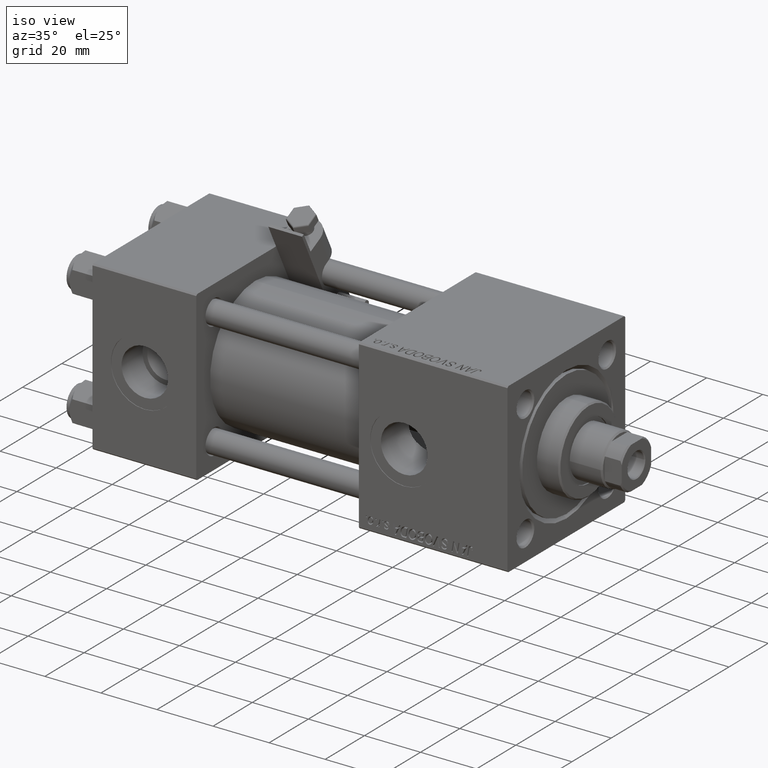
[diagram: clean part render]
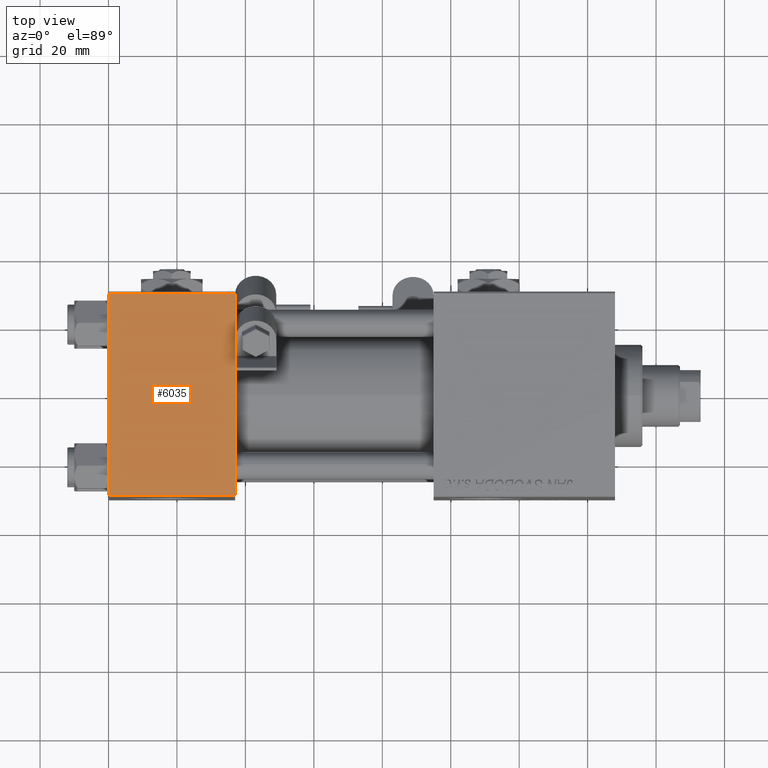
[diagram: tour spotlight — one face highlighted and labeled with its STEP entity id]
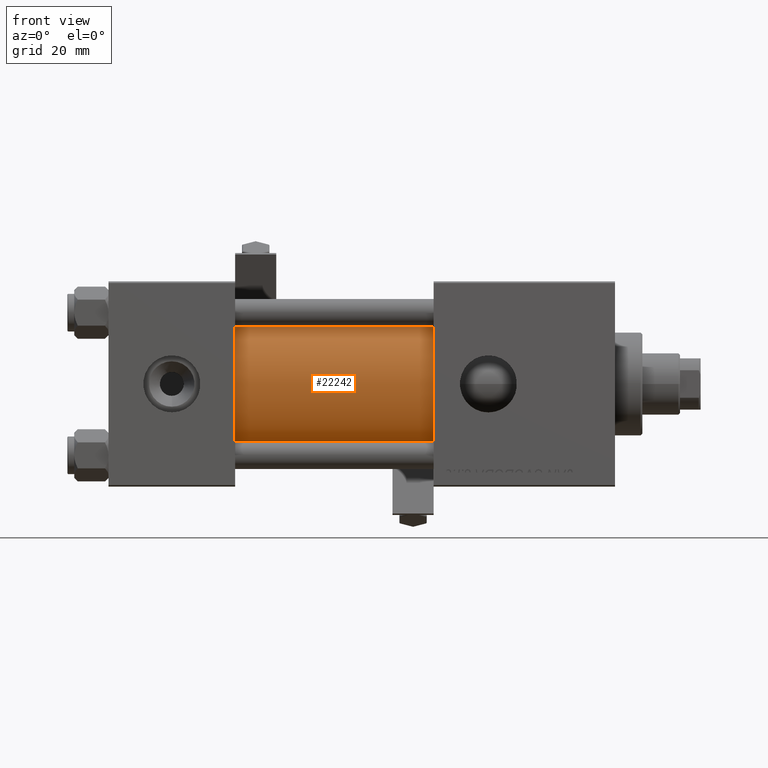
[diagram: tour spotlight — one face highlighted and labeled with its STEP entity id]
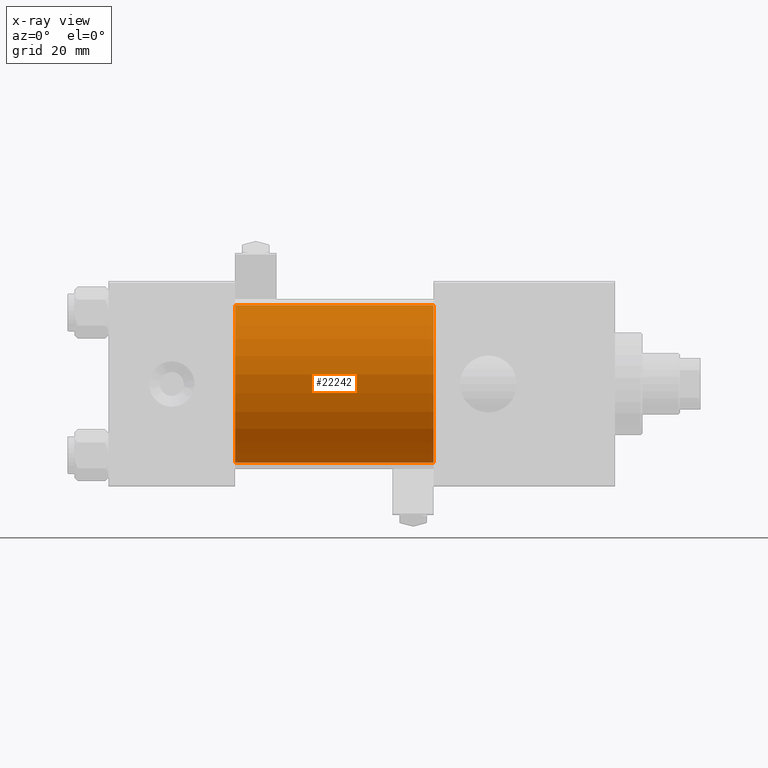
[diagram: x-ray of the same camera — body ghosted, this tour face saturated]
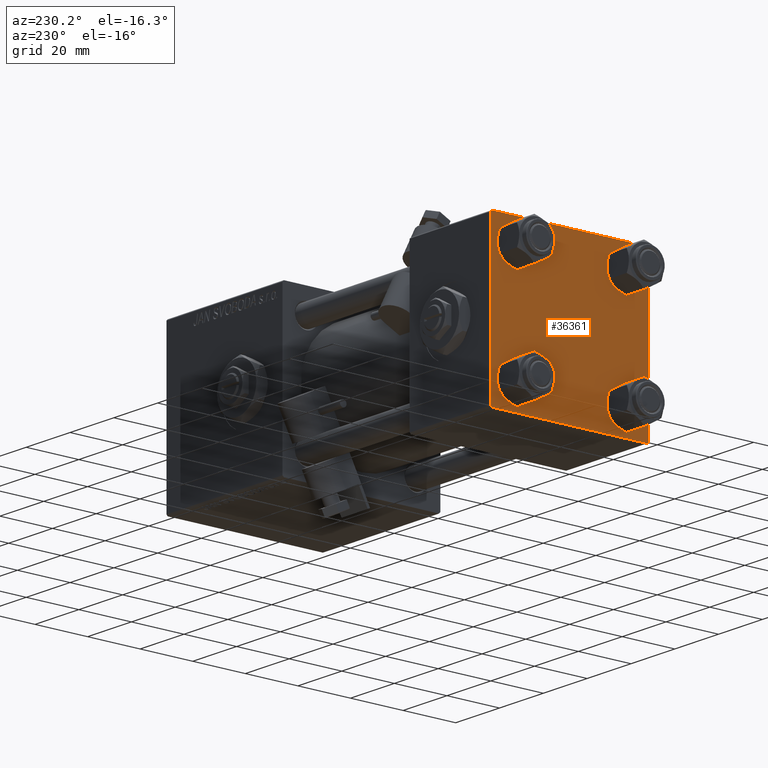
[diagram: tour spotlight — one face highlighted and labeled with its STEP entity id]
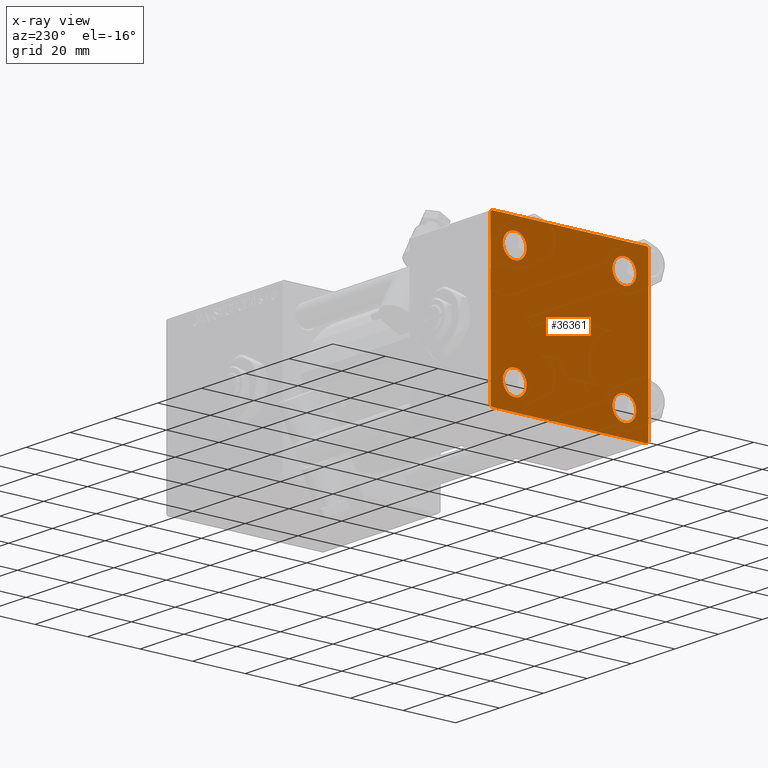
[diagram: x-ray of the same camera — body ghosted, this tour face saturated]
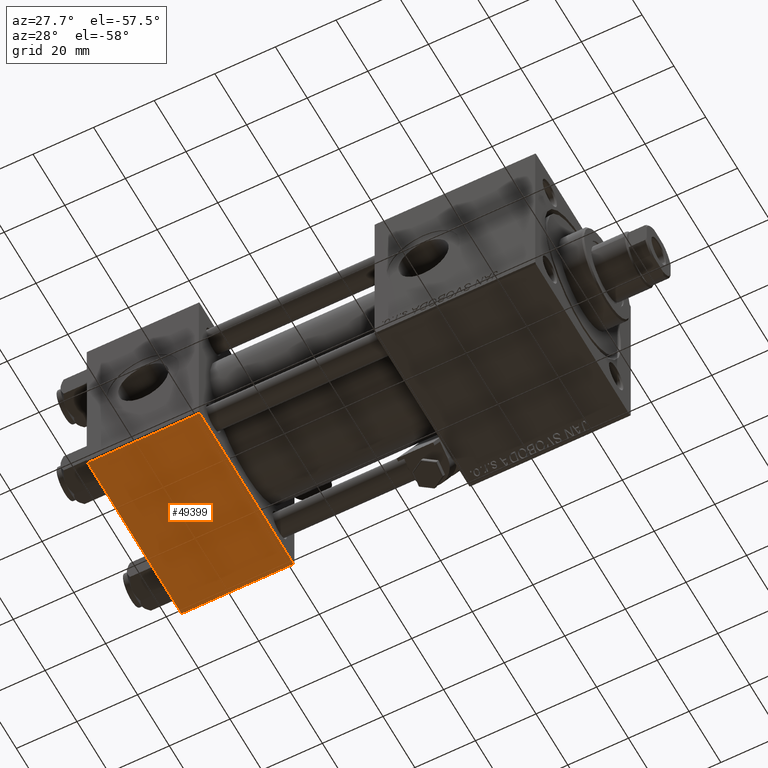
[diagram: tour spotlight — one face highlighted and labeled with its STEP entity id]
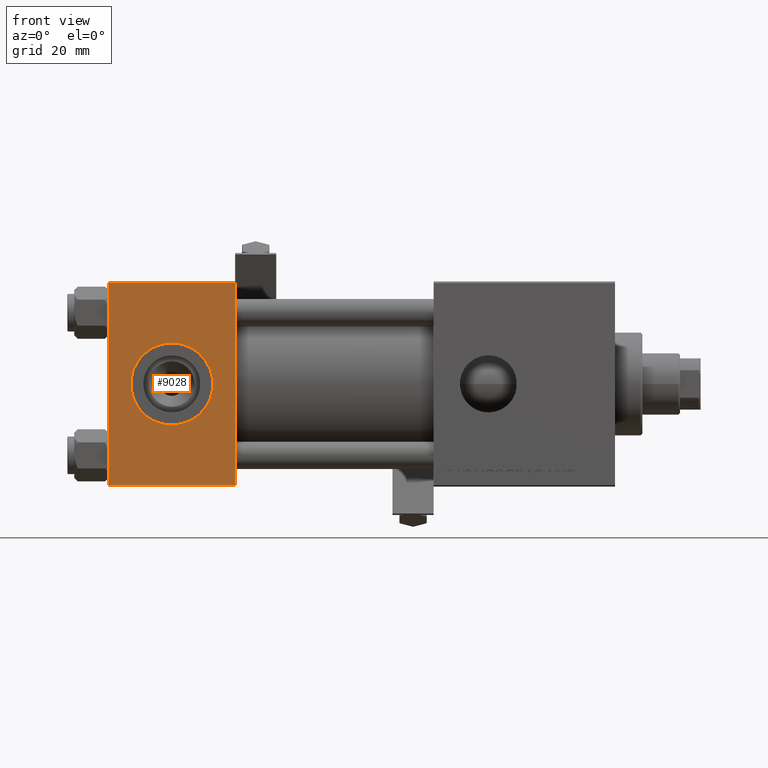
[diagram: tour spotlight — one face highlighted and labeled with its STEP entity id]
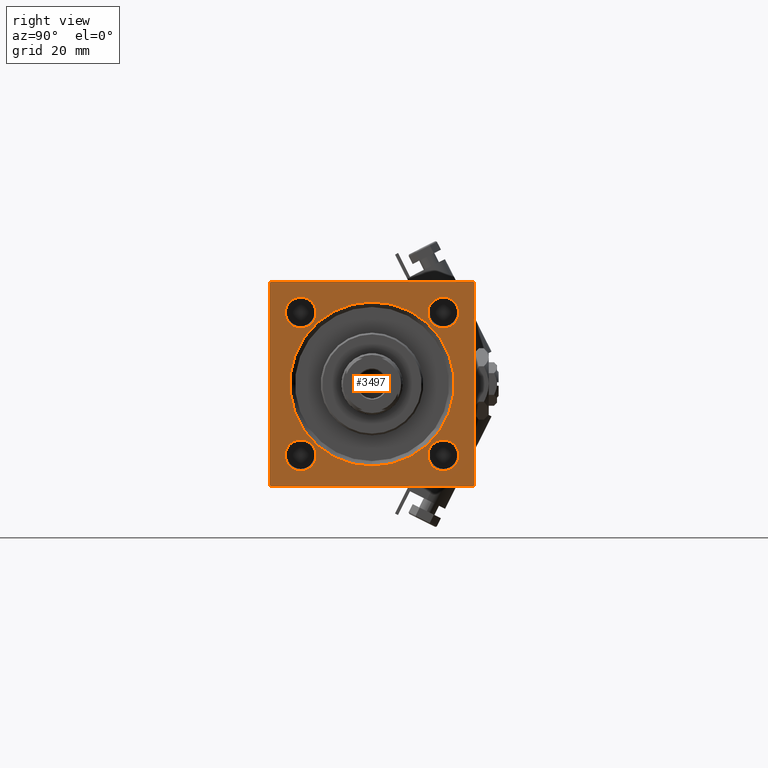
[diagram: tour spotlight — one face highlighted and labeled with its STEP entity id]
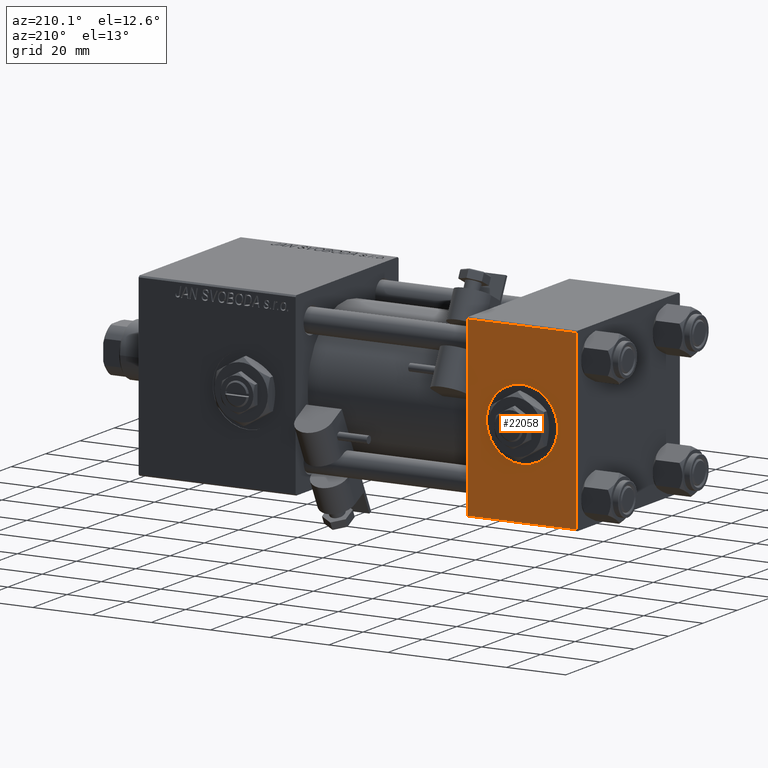
[diagram: tour spotlight — one face highlighted and labeled with its STEP entity id]
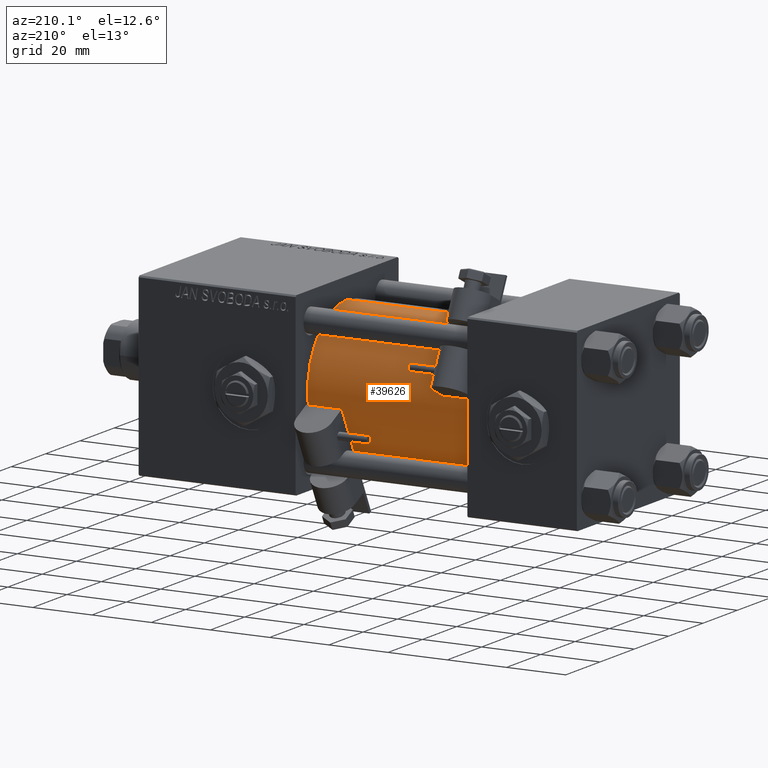
[diagram: tour spotlight — one face highlighted and labeled with its STEP entity id]
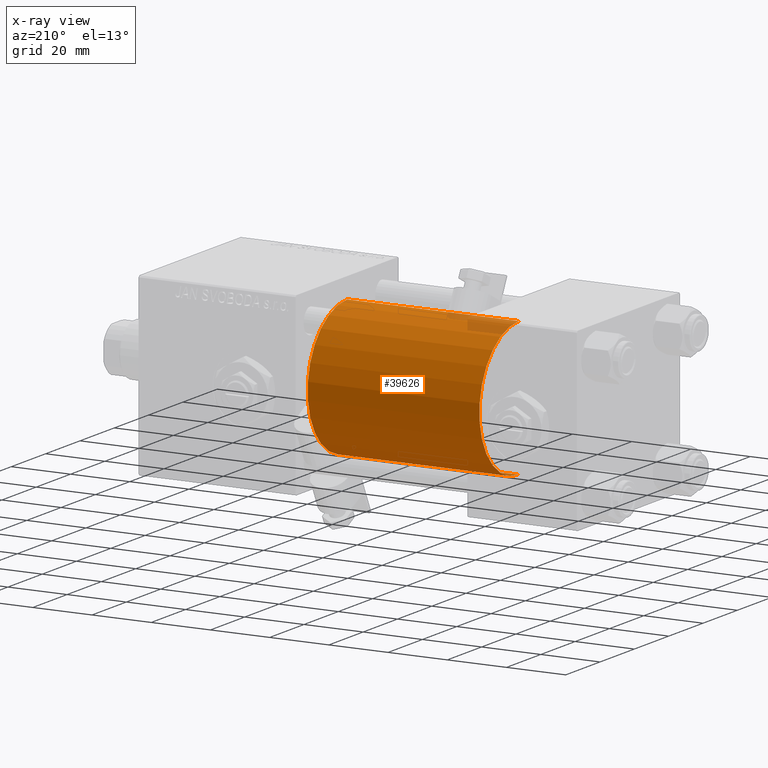
[diagram: x-ray of the same camera — body ghosted, this tour face saturated]
A machine part: a face-by-face anatomy tour. The part has 1314 B-rep faces; the first image is the clean iso view, then the 8 largest visible faces are spotlighted one at a time (largest first), each with its STEP entity span.

Face 1 — top view, entity #6035. In plain terms, the highlighted planar face has unit normal (0, 0, -1).
Definition (entity closure, byte-faithful):
#613 = ORIENTED_EDGE ( 'NONE', *, *, #39413, .T. ) ;
#3062 = PLANE ( 'NONE',  #35043 ) ;
#3331 = ORIENTED_EDGE ( 'NONE', *, *, #46986, .T. ) ;
#4451 = CARTESIAN_POINT ( 'NONE',  ( 37.00000000000000000, 29.99999999999999289, 30.00000000000000000 ) ) ;
#4892 = EDGE_LOOP ( 'NONE', ( #3331, #613, #36989, #26022 ) ) ;
#5574 = CARTESIAN_POINT ( 'NONE',  ( 0.000000000000000000, -29.49999999999998579, 29.99999999999999289 ) ) ;
#6035 = ADVANCED_FACE ( 'NONE', ( #18987 ), #3062, .F. ) ;
#7403 = CARTESIAN_POINT ( 'NONE',  ( 0.000000000000000000, 29.99999999999999289, 30.00000000000000000 ) ) ;
#9561 = DIRECTION ( 'NONE',  ( 1.000000000000000000, 0.000000000000000000, 0.000000000000000000 ) ) ;
#11977 = VERTEX_POINT ( 'NONE', #5574 ) ;
#12802 = VECTOR ( 'NONE', #25299, 1000.000000000000000 ) ;
#12999 = EDGE_CURVE ( 'NONE', #41034, #47770, #37406, .T. ) ;
#14526 = VERTEX_POINT ( 'NONE', #38596 ) ;
#18987 = FACE_OUTER_BOUND ( 'NONE', #4892, .T. ) ;
#20910 = DIRECTION ( 'NONE',  ( 0.000000000000000000, -1.000000000000000000, -1.156482317317871725E-16 ) ) ;
#21573 = CARTESIAN_POINT ( 'NONE',  ( 37.00000000000000000, 29.49999999999999289, 30.00000000000000000 ) ) ;
#22503 = LINE ( 'NONE', #46499, #40393 ) ;
#25299 = DIRECTION ( 'NONE',  ( -1.000000000000000000, 0.000000000000000000, 0.000000000000000000 ) ) ;
#26022 = ORIENTED_EDGE ( 'NONE', *, *, #12999, .T. ) ;
#28637 = EDGE_CURVE ( 'NONE', #41034, #14526, #50286, .T. ) ;
#31140 = DIRECTION ( 'NONE',  ( 0.000000000000000000, -1.000000000000000000, -1.156482317317871725E-16 ) ) ;
#35043 = AXIS2_PLACEMENT_3D ( 'NONE', #52142, #43231, #47560 ) ;
#36989 = ORIENTED_EDGE ( 'NONE', *, *, #28637, .F. ) ;
#37353 = CARTESIAN_POINT ( 'NONE',  ( 0.000000000000000000, 29.49999999999999289, 30.00000000000000000 ) ) ;
#37406 = LINE ( 'NONE', #37956, #12802 ) ;
#37956 = CARTESIAN_POINT ( 'NONE',  ( 0.000000000000000000, 29.49999999999999289, 30.00000000000000000 ) ) ;
#38596 = CARTESIAN_POINT ( 'NONE',  ( 37.00000000000000000, -29.49999999999998579, 29.99999999999999289 ) ) ;
#39413 = EDGE_CURVE ( 'NONE', #11977, #14526, #22503, .T. ) ;
#40393 = VECTOR ( 'NONE', #9561, 1000.000000000000000 ) ;
#41034 = VERTEX_POINT ( 'NONE', #21573 ) ;
#43231 = DIRECTION ( 'NONE',  ( 0.000000000000000000, 1.156482317317871725E-16, -1.000000000000000000 ) ) ;
#43513 = LINE ( 'NONE', #7403, #47954 ) ;
#46499 = CARTESIAN_POINT ( 'NONE',  ( 37.00000000000000000, -29.50000000000000000, 29.99999999999999289 ) ) ;
#46986 = EDGE_CURVE ( 'NONE', #47770, #11977, #43513, .T. ) ;
#47560 = DIRECTION ( 'NONE',  ( 0.000000000000000000, 1.000000000000000000, 1.156482317317871725E-16 ) ) ;
#47770 = VERTEX_POINT ( 'NONE', #37353 ) ;
#47954 = VECTOR ( 'NONE', #31140, 1000.000000000000000 ) ;
#49573 = VECTOR ( 'NONE', #20910, 1000.000000000000000 ) ;
#50286 = LINE ( 'NONE', #4451, #49573 ) ;
#52142 = CARTESIAN_POINT ( 'NONE',  ( 37.00000000000000000, 29.99999999999999289, 30.00000000000000000 ) ) ;

Face 2 — front view, entity #22242. An x-ray twin of the same camera follows (body ghosted, this face saturated) — the face is partly hidden behind the body. In plain terms, the highlighted cylindrical surface (partial cylindrical patch) has radius 23 mm, axis along (-1, -0, -0).
Definition (entity closure, byte-faithful):
#2081 = DIRECTION ( 'NONE',  ( 0.000000000000000000, 0.000000000000000000, 1.000000000000000000 ) ) ;
#2283 = EDGE_CURVE ( 'NONE', #11418, #39418, #45194, .T. ) ;
#3024 = ORIENTED_EDGE ( 'NONE', *, *, #22756, .F. ) ;
#5601 = DIRECTION ( 'NONE',  ( 0.000000000000000000, 0.000000000000000000, 1.000000000000000000 ) ) ;
#5644 = ORIENTED_EDGE ( 'NONE', *, *, #2283, .F. ) ;
#9591 = CIRCLE ( 'NONE', #49208, 23.00000000000000000 ) ;
#9915 = AXIS2_PLACEMENT_3D ( 'NONE', #32915, #24834, #12423 ) ;
#11418 = VERTEX_POINT ( 'NONE', #41038 ) ;
#12423 = DIRECTION ( 'NONE',  ( 0.000000000000000000, 0.000000000000000000, -1.000000000000000000 ) ) ;
#15522 = LINE ( 'NONE', #27908, #16628 ) ;
#16590 = AXIS2_PLACEMENT_3D ( 'NONE', #37231, #46856, #5601 ) ;
#16628 = VECTOR ( 'NONE', #39509, 1000.000000000000000 ) ;
#17068 = ORIENTED_EDGE ( 'NONE', *, *, #18428, .T. ) ;
#17694 = VECTOR ( 'NONE', #18722, 1000.000000000000000 ) ;
#18428 = EDGE_CURVE ( 'NONE', #29312, #28884, #9591, .T. ) ;
#18722 = DIRECTION ( 'NONE',  ( -1.000000000000000000, -0.000000000000000000, -0.000000000000000000 ) ) ;
#22242 = ADVANCED_FACE ( 'NONE', ( #34718 ), #45324, .T. ) ;
#22756 = EDGE_CURVE ( 'NONE', #39418, #28884, #15522, .T. ) ;
#22768 = CARTESIAN_POINT ( 'NONE',  ( 37.00000000000000000, 2.146024240737012665E-16, -23.00000000000000000 ) ) ;
#24834 = DIRECTION ( 'NONE',  ( 1.000000000000000000, 0.000000000000000000, 0.000000000000000000 ) ) ;
#27908 = CARTESIAN_POINT ( 'NONE',  ( 95.00000000000000000, 2.146024240737012665E-16, -23.00000000000000000 ) ) ;
#28884 = VERTEX_POINT ( 'NONE', #22768 ) ;
#29312 = VERTEX_POINT ( 'NONE', #52015 ) ;
#31410 = EDGE_CURVE ( 'NONE', #11418, #29312, #38931, .T. ) ;
#32915 = CARTESIAN_POINT ( 'NONE',  ( 95.00000000000000000, -2.602085213965210642E-15, 0.000000000000000000 ) ) ;
#33455 = ORIENTED_EDGE ( 'NONE', *, *, #31410, .T. ) ;
#34718 = FACE_OUTER_BOUND ( 'NONE', #46432, .T. ) ;
#35168 = CARTESIAN_POINT ( 'NONE',  ( 95.00000000000000000, -2.602085213965210642E-15, 23.00000000000000000 ) ) ;
#37231 = CARTESIAN_POINT ( 'NONE',  ( 95.00000000000000000, -2.602085213965210642E-15, 0.000000000000000000 ) ) ;
#38931 = LINE ( 'NONE', #35168, #17694 ) ;
#39418 = VERTEX_POINT ( 'NONE', #43769 ) ;
#39509 = DIRECTION ( 'NONE',  ( -1.000000000000000000, -0.000000000000000000, -0.000000000000000000 ) ) ;
#41038 = CARTESIAN_POINT ( 'NONE',  ( 95.00000000000000000, -2.602085213965210642E-15, 23.00000000000000000 ) ) ;
#43769 = CARTESIAN_POINT ( 'NONE',  ( 95.00000000000000000, 2.146024240737012665E-16, -23.00000000000000000 ) ) ;
#45194 = CIRCLE ( 'NONE', #9915, 23.00000000000000000 ) ;
#45324 = CYLINDRICAL_SURFACE ( 'NONE', #16590, 23.00000000000000000 ) ;
#46432 = EDGE_LOOP ( 'NONE', ( #3024, #5644, #33455, #17068 ) ) ;
#46856 = DIRECTION ( 'NONE',  ( -1.000000000000000000, -0.000000000000000000, -0.000000000000000000 ) ) ;
#49208 = AXIS2_PLACEMENT_3D ( 'NONE', #50363, #50895, #2081 ) ;
#50363 = CARTESIAN_POINT ( 'NONE',  ( 37.00000000000000000, -2.602085213965210642E-15, 0.000000000000000000 ) ) ;
#50895 = DIRECTION ( 'NONE',  ( 1.000000000000000000, -0.000000000000000000, 0.000000000000000000 ) ) ;
#52015 = CARTESIAN_POINT ( 'NONE',  ( 37.00000000000000000, -2.602085213965210642E-15, 23.00000000000000000 ) ) ;

Face 3 — auxiliary view, entity #36361. An x-ray twin of the same camera follows (body ghosted, this face saturated) — the face is partly hidden behind the body. In plain terms, the highlighted planar face has unit normal (-1, 0, 0).
Definition (entity closure, byte-faithful):
#1197 = VECTOR ( 'NONE', #48134, 1000.000000000000000 ) ;
#1382 = CARTESIAN_POINT ( 'NONE',  ( 0.000000000000000000, 0.000000000000000000, 0.000000000000000000 ) ) ;
#1886 = CARTESIAN_POINT ( 'NONE',  ( 0.000000000000000000, 20.84999999999999787, 20.85000000000000142 ) ) ;
#3733 = LINE ( 'NONE', #20182, #22213 ) ;
#4294 = CARTESIAN_POINT ( 'NONE',  ( 0.000000000000000000, -20.84999999999999076, 25.35000000000002274 ) ) ;
#5146 = VERTEX_POINT ( 'NONE', #46809 ) ;
#5425 = CIRCLE ( 'NONE', #20064, 4.500000000000017764 ) ;
#5458 = VERTEX_POINT ( 'NONE', #39664 ) ;
#5529 = CIRCLE ( 'NONE', #51148, 4.500000000000017764 ) ;
#5574 = CARTESIAN_POINT ( 'NONE',  ( 0.000000000000000000, -29.49999999999998579, 29.99999999999999289 ) ) ;
#5640 = AXIS2_PLACEMENT_3D ( 'NONE', #1886, #39080, #51780 ) ;
#5717 = VERTEX_POINT ( 'NONE', #8641 ) ;
#6711 = CARTESIAN_POINT ( 'NONE',  ( 0.000000000000000000, 20.84999999999999787, 25.35000000000001918 ) ) ;
#6867 = CARTESIAN_POINT ( 'NONE',  ( 0.000000000000000000, 20.84999999999999787, -16.34999999999998366 ) ) ;
#7382 = VERTEX_POINT ( 'NONE', #48045 ) ;
#7403 = CARTESIAN_POINT ( 'NONE',  ( 0.000000000000000000, 29.99999999999999289, 30.00000000000000000 ) ) ;
#8148 = EDGE_LOOP ( 'NONE', ( #51881, #13709 ) ) ;
#8275 = ORIENTED_EDGE ( 'NONE', *, *, #21694, .T. ) ;
#8641 = CARTESIAN_POINT ( 'NONE',  ( 0.000000000000000000, 29.99999999999999289, -29.50000000000000000 ) ) ;
#9088 = VECTOR ( 'NONE', #37190, 1000.000000000000114 ) ;
#9314 = AXIS2_PLACEMENT_3D ( 'NONE', #11972, #28657, #49421 ) ;
#9968 = CIRCLE ( 'NONE', #26317, 4.500000000000017764 ) ;
#10850 = EDGE_CURVE ( 'NONE', #36775, #31382, #35976, .T. ) ;
#11972 = CARTESIAN_POINT ( 'NONE',  ( 0.000000000000000000, -20.84999999999999076, -20.85000000000000497 ) ) ;
#11977 = VERTEX_POINT ( 'NONE', #5574 ) ;
#12653 = DIRECTION ( 'NONE',  ( 0.000000000000000000, 0.000000000000000000, 1.000000000000000000 ) ) ;
#12672 = CARTESIAN_POINT ( 'NONE',  ( -0.000000000000000000, -29.74999999999999645, 29.74999999999999645 ) ) ;
#12813 = ORIENTED_EDGE ( 'NONE', *, *, #31335, .T. ) ;
#13061 = CIRCLE ( 'NONE', #44035, 4.500000000000017764 ) ;
#13569 = VERTEX_POINT ( 'NONE', #17596 ) ;
#13709 = ORIENTED_EDGE ( 'NONE', *, *, #10850, .T. ) ;
#14566 = VERTEX_POINT ( 'NONE', #44859 ) ;
#14714 = LINE ( 'NONE', #44070, #1197 ) ;
#15916 = VERTEX_POINT ( 'NONE', #43956 ) ;
#17133 = EDGE_CURVE ( 'NONE', #49906, #51602, #50149, .T. ) ;
#17286 = VERTEX_POINT ( 'NONE', #6711 ) ;
#17596 = CARTESIAN_POINT ( 'NONE',  ( 0.000000000000000000, 29.99999999999999289, 29.50000000000000000 ) ) ;
#17828 = DIRECTION ( 'NONE',  ( -1.000000000000000000, 0.000000000000000000, -0.000000000000000000 ) ) ;
#18092 = EDGE_CURVE ( 'NONE', #31382, #36775, #13061, .T. ) ;
#18241 = DIRECTION ( 'NONE',  ( 0.000000000000000000, 0.000000000000000000, 1.000000000000000000 ) ) ;
#18271 = CARTESIAN_POINT ( 'NONE',  ( 0.000000000000000000, 29.74999999999957723, -29.75000000000040501 ) ) ;
#18460 = CARTESIAN_POINT ( 'NONE',  ( 0.000000000000000000, 20.84999999999999787, -25.35000000000001918 ) ) ;
#18540 = AXIS2_PLACEMENT_3D ( 'NONE', #27137, #51679, #46093 ) ;
#19157 = CARTESIAN_POINT ( 'NONE',  ( 0.000000000000000000, -30.00000000000000000, 29.99999999999999289 ) ) ;
#20064 = AXIS2_PLACEMENT_3D ( 'NONE', #20677, #37356, #37098 ) ;
#20182 = CARTESIAN_POINT ( 'NONE',  ( 0.000000000000000000, 29.99999999999999289, 30.00000000000000000 ) ) ;
#20250 = EDGE_LOOP ( 'NONE', ( #26274, #31460 ) ) ;
#20677 = CARTESIAN_POINT ( 'NONE',  ( 0.000000000000000000, -20.84999999999999076, -20.85000000000000497 ) ) ;
#21376 = EDGE_CURVE ( 'NONE', #47770, #13569, #42270, .T. ) ;
#21673 = ORIENTED_EDGE ( 'NONE', *, *, #46986, .F. ) ;
#21694 = EDGE_CURVE ( 'NONE', #7382, #15916, #5425, .T. ) ;
#21800 = CARTESIAN_POINT ( 'NONE',  ( 0.000000000000000000, 29.74999999999999645, 29.74999999999999645 ) ) ;
#21834 = DIRECTION ( 'NONE',  ( 0.000000000000000000, -0.7071067811865474617, 0.7071067811865474617 ) ) ;
#22213 = VECTOR ( 'NONE', #41441, 1000.000000000000000 ) ;
#23024 = ORIENTED_EDGE ( 'NONE', *, *, #24090, .T. ) ;
#24090 = EDGE_CURVE ( 'NONE', #5717, #5146, #30672, .T. ) ;
#24447 = EDGE_CURVE ( 'NONE', #5146, #49906, #14714, .T. ) ;
#24830 = CARTESIAN_POINT ( 'NONE',  ( 0.000000000000000000, 20.84999999999999787, -20.85000000000000142 ) ) ;
#25340 = EDGE_CURVE ( 'NONE', #39859, #14566, #5529, .T. ) ;
#25631 = AXIS2_PLACEMENT_3D ( 'NONE', #1382, #17828, #45335 ) ;
#25663 = FACE_BOUND ( 'NONE', #45005, .T. ) ;
#25800 = ORIENTED_EDGE ( 'NONE', *, *, #49154, .T. ) ;
#26274 = ORIENTED_EDGE ( 'NONE', *, *, #32168, .T. ) ;
#26317 = AXIS2_PLACEMENT_3D ( 'NONE', #46775, #42988, #33590 ) ;
#26902 = DIRECTION ( 'NONE',  ( -0.000000000000000000, -0.7071067811865574537, -0.7071067811865376918 ) ) ;
#27137 = CARTESIAN_POINT ( 'NONE',  ( 0.000000000000000000, -20.84999999999999076, 20.85000000000000497 ) ) ;
#28016 = CIRCLE ( 'NONE', #18540, 4.500000000000017764 ) ;
#28070 = EDGE_CURVE ( 'NONE', #5458, #11977, #50603, .T. ) ;
#28236 = AXIS2_PLACEMENT_3D ( 'NONE', #34427, #42759, #18241 ) ;
#28288 = ORIENTED_EDGE ( 'NONE', *, *, #49828, .T. ) ;
#28657 = DIRECTION ( 'NONE',  ( 1.000000000000000000, -0.000000000000000000, 0.000000000000000000 ) ) ;
#28665 = VECTOR ( 'NONE', #34710, 1000.000000000000114 ) ;
#30672 = LINE ( 'NONE', #18271, #48556 ) ;
#31140 = DIRECTION ( 'NONE',  ( 0.000000000000000000, -1.000000000000000000, -1.156482317317871725E-16 ) ) ;
#31335 = EDGE_CURVE ( 'NONE', #14566, #39859, #28016, .T. ) ;
#31382 = VERTEX_POINT ( 'NONE', #6867 ) ;
#31460 = ORIENTED_EDGE ( 'NONE', *, *, #32755, .T. ) ;
#32168 = EDGE_CURVE ( 'NONE', #17286, #49256, #9968, .T. ) ;
#32377 = ORIENTED_EDGE ( 'NONE', *, *, #17133, .T. ) ;
#32755 = EDGE_CURVE ( 'NONE', #49256, #17286, #53033, .T. ) ;
#33510 = EDGE_CURVE ( 'NONE', #5458, #51602, #52320, .T. ) ;
#33590 = DIRECTION ( 'NONE',  ( 0.000000000000000000, 0.000000000000000000, 1.000000000000000000 ) ) ;
#33951 = CARTESIAN_POINT ( 'NONE',  ( 0.000000000000000000, -29.75000000000001066, -29.75000000000001066 ) ) ;
#34427 = CARTESIAN_POINT ( 'NONE',  ( 0.000000000000000000, 20.84999999999999787, -20.85000000000000142 ) ) ;
#34710 = DIRECTION ( 'NONE',  ( 0.000000000000000000, 0.7071067811865474617, -0.7071067811865474617 ) ) ;
#35369 = ORIENTED_EDGE ( 'NONE', *, *, #24447, .T. ) ;
#35976 = CIRCLE ( 'NONE', #28236, 4.500000000000017764 ) ;
#36361 = ADVANCED_FACE ( 'NONE', ( #41817, #25663, #41552, #42095, #37512 ), #37244, .T. ) ;
#36775 = VERTEX_POINT ( 'NONE', #18460 ) ;
#37098 = DIRECTION ( 'NONE',  ( 0.000000000000000000, 0.000000000000000000, 1.000000000000000000 ) ) ;
#37190 = DIRECTION ( 'NONE',  ( -0.000000000000000000, 0.7071067811865474617, 0.7071067811865474617 ) ) ;
#37244 = PLANE ( 'NONE',  #25631 ) ;
#37353 = CARTESIAN_POINT ( 'NONE',  ( 0.000000000000000000, 29.49999999999999289, 30.00000000000000000 ) ) ;
#37356 = DIRECTION ( 'NONE',  ( 1.000000000000000000, -0.000000000000000000, 0.000000000000000000 ) ) ;
#37512 = FACE_OUTER_BOUND ( 'NONE', #45664, .T. ) ;
#38712 = ORIENTED_EDGE ( 'NONE', *, *, #25340, .T. ) ;
#39080 = DIRECTION ( 'NONE',  ( 1.000000000000000000, -0.000000000000000000, 0.000000000000000000 ) ) ;
#39664 = CARTESIAN_POINT ( 'NONE',  ( 0.000000000000000000, -30.00000000000000000, 29.49999999999999289 ) ) ;
#39859 = VERTEX_POINT ( 'NONE', #4294 ) ;
#41001 = ORIENTED_EDGE ( 'NONE', *, *, #21376, .T. ) ;
#41095 = ORIENTED_EDGE ( 'NONE', *, *, #33510, .F. ) ;
#41253 = DIRECTION ( 'NONE',  ( 1.000000000000000000, -0.000000000000000000, 0.000000000000000000 ) ) ;
#41441 = DIRECTION ( 'NONE',  ( 0.000000000000000000, 0.000000000000000000, -1.000000000000000000 ) ) ;
#41480 = CARTESIAN_POINT ( 'NONE',  ( 0.000000000000000000, -20.84999999999999076, 20.85000000000000497 ) ) ;
#41552 = FACE_BOUND ( 'NONE', #8148, .T. ) ;
#41817 = FACE_BOUND ( 'NONE', #46754, .T. ) ;
#42095 = FACE_BOUND ( 'NONE', #20250, .T. ) ;
#42270 = LINE ( 'NONE', #21800, #28665 ) ;
#42759 = DIRECTION ( 'NONE',  ( 1.000000000000000000, -0.000000000000000000, 0.000000000000000000 ) ) ;
#42851 = CIRCLE ( 'NONE', #9314, 4.500000000000017764 ) ;
#42988 = DIRECTION ( 'NONE',  ( 1.000000000000000000, -0.000000000000000000, 0.000000000000000000 ) ) ;
#43513 = LINE ( 'NONE', #7403, #47954 ) ;
#43632 = CARTESIAN_POINT ( 'NONE',  ( 0.000000000000000000, -30.00000000000000000, -29.50000000000001776 ) ) ;
#43956 = CARTESIAN_POINT ( 'NONE',  ( 0.000000000000000000, -20.84999999999999076, -16.34999999999998721 ) ) ;
#44035 = AXIS2_PLACEMENT_3D ( 'NONE', #24830, #41253, #45579 ) ;
#44070 = CARTESIAN_POINT ( 'NONE',  ( 0.000000000000000000, 29.99999999999999289, -30.00000000000000000 ) ) ;
#44859 = CARTESIAN_POINT ( 'NONE',  ( 0.000000000000000000, -20.84999999999999076, 16.34999999999998721 ) ) ;
#45005 = EDGE_LOOP ( 'NONE', ( #28288, #8275 ) ) ;
#45335 = DIRECTION ( 'NONE',  ( -0.000000000000000000, 0.000000000000000000, 1.000000000000000000 ) ) ;
#45579 = DIRECTION ( 'NONE',  ( 0.000000000000000000, 0.000000000000000000, 1.000000000000000000 ) ) ;
#45664 = EDGE_LOOP ( 'NONE', ( #25800, #23024, #35369, #32377, #41095, #46350, #21673, #41001 ) ) ;
#46093 = DIRECTION ( 'NONE',  ( 0.000000000000000000, 0.000000000000000000, 1.000000000000000000 ) ) ;
#46350 = ORIENTED_EDGE ( 'NONE', *, *, #28070, .T. ) ;
#46754 = EDGE_LOOP ( 'NONE', ( #38712, #12813 ) ) ;
#46775 = CARTESIAN_POINT ( 'NONE',  ( 0.000000000000000000, 20.84999999999999787, 20.85000000000000142 ) ) ;
#46809 = CARTESIAN_POINT ( 'NONE',  ( 0.000000000000000000, 29.49999999999997868, -30.00000000000000000 ) ) ;
#46986 = EDGE_CURVE ( 'NONE', #47770, #11977, #43513, .T. ) ;
#47770 = VERTEX_POINT ( 'NONE', #37353 ) ;
#47915 = VECTOR ( 'NONE', #51238, 1000.000000000000000 ) ;
#47954 = VECTOR ( 'NONE', #31140, 1000.000000000000000 ) ;
#48045 = CARTESIAN_POINT ( 'NONE',  ( 0.000000000000000000, -20.84999999999999076, -25.35000000000002274 ) ) ;
#48134 = DIRECTION ( 'NONE',  ( 0.000000000000000000, -1.000000000000000000, -1.156482317317871725E-16 ) ) ;
#48556 = VECTOR ( 'NONE', #26902, 999.9999999999998863 ) ;
#49154 = EDGE_CURVE ( 'NONE', #13569, #5717, #3733, .T. ) ;
#49256 = VERTEX_POINT ( 'NONE', #50096 ) ;
#49421 = DIRECTION ( 'NONE',  ( 0.000000000000000000, 0.000000000000000000, 1.000000000000000000 ) ) ;
#49828 = EDGE_CURVE ( 'NONE', #15916, #7382, #42851, .T. ) ;
#49906 = VERTEX_POINT ( 'NONE', #51018 ) ;
#50096 = CARTESIAN_POINT ( 'NONE',  ( 0.000000000000000000, 20.84999999999999787, 16.34999999999998366 ) ) ;
#50149 = LINE ( 'NONE', #33951, #52751 ) ;
#50389 = DIRECTION ( 'NONE',  ( 1.000000000000000000, -0.000000000000000000, 0.000000000000000000 ) ) ;
#50603 = LINE ( 'NONE', #12672, #9088 ) ;
#51018 = CARTESIAN_POINT ( 'NONE',  ( 0.000000000000000000, -29.50000000000000000, -30.00000000000000711 ) ) ;
#51148 = AXIS2_PLACEMENT_3D ( 'NONE', #41480, #50389, #12653 ) ;
#51238 = DIRECTION ( 'NONE',  ( 0.000000000000000000, 0.000000000000000000, -1.000000000000000000 ) ) ;
#51602 = VERTEX_POINT ( 'NONE', #43632 ) ;
#51679 = DIRECTION ( 'NONE',  ( 1.000000000000000000, -0.000000000000000000, 0.000000000000000000 ) ) ;
#51780 = DIRECTION ( 'NONE',  ( 0.000000000000000000, 0.000000000000000000, 1.000000000000000000 ) ) ;
#51881 = ORIENTED_EDGE ( 'NONE', *, *, #18092, .T. ) ;
#52320 = LINE ( 'NONE', #19157, #47915 ) ;
#52751 = VECTOR ( 'NONE', #21834, 1000.000000000000114 ) ;
#53033 = CIRCLE ( 'NONE', #5640, 4.500000000000017764 ) ;

Face 4 — auxiliary view, entity #49399. In plain terms, the highlighted planar face has unit normal (0, 0, -1).
Definition (entity closure, byte-faithful):
#1197 = VECTOR ( 'NONE', #48134, 1000.000000000000000 ) ;
#1385 = VERTEX_POINT ( 'NONE', #40295 ) ;
#5146 = VERTEX_POINT ( 'NONE', #46809 ) ;
#6376 = DIRECTION ( 'NONE',  ( 0.000000000000000000, 1.156482317317871725E-16, -1.000000000000000000 ) ) ;
#8908 = VECTOR ( 'NONE', #11054, 1000.000000000000000 ) ;
#9575 = ORIENTED_EDGE ( 'NONE', *, *, #23241, .T. ) ;
#10971 = PLANE ( 'NONE',  #25628 ) ;
#11054 = DIRECTION ( 'NONE',  ( 0.000000000000000000, -1.000000000000000000, -1.156482317317871725E-16 ) ) ;
#12670 = CARTESIAN_POINT ( 'NONE',  ( 37.00000000000000000, 29.49999999999997868, -30.00000000000000000 ) ) ;
#13836 = EDGE_LOOP ( 'NONE', ( #28678, #16843, #9575, #19230 ) ) ;
#14714 = LINE ( 'NONE', #44070, #1197 ) ;
#15284 = DIRECTION ( 'NONE',  ( 0.000000000000000000, 1.000000000000000000, 1.156482317317871725E-16 ) ) ;
#16843 = ORIENTED_EDGE ( 'NONE', *, *, #17065, .T. ) ;
#17065 = EDGE_CURVE ( 'NONE', #5146, #1385, #49607, .T. ) ;
#19230 = ORIENTED_EDGE ( 'NONE', *, *, #45365, .T. ) ;
#23241 = EDGE_CURVE ( 'NONE', #1385, #37871, #23714, .T. ) ;
#23424 = CARTESIAN_POINT ( 'NONE',  ( 37.00000000000000000, -29.50000000000000000, -30.00000000000000711 ) ) ;
#23714 = LINE ( 'NONE', #40134, #8908 ) ;
#24447 = EDGE_CURVE ( 'NONE', #5146, #49906, #14714, .T. ) ;
#25628 = AXIS2_PLACEMENT_3D ( 'NONE', #43303, #6376, #15284 ) ;
#28678 = ORIENTED_EDGE ( 'NONE', *, *, #24447, .F. ) ;
#31116 = VECTOR ( 'NONE', #45560, 1000.000000000000000 ) ;
#35764 = FACE_OUTER_BOUND ( 'NONE', #13836, .T. ) ;
#37628 = VECTOR ( 'NONE', #43712, 1000.000000000000000 ) ;
#37871 = VERTEX_POINT ( 'NONE', #23424 ) ;
#39675 = LINE ( 'NONE', #52622, #37628 ) ;
#40134 = CARTESIAN_POINT ( 'NONE',  ( 37.00000000000000000, 29.99999999999999289, -30.00000000000000000 ) ) ;
#40295 = CARTESIAN_POINT ( 'NONE',  ( 37.00000000000000000, 29.49999999999997868, -30.00000000000000000 ) ) ;
#43303 = CARTESIAN_POINT ( 'NONE',  ( 37.00000000000000000, 29.99999999999999289, -30.00000000000000000 ) ) ;
#43712 = DIRECTION ( 'NONE',  ( -1.000000000000000000, 0.000000000000000000, 0.000000000000000000 ) ) ;
#44070 = CARTESIAN_POINT ( 'NONE',  ( 0.000000000000000000, 29.99999999999999289, -30.00000000000000000 ) ) ;
#45365 = EDGE_CURVE ( 'NONE', #37871, #49906, #39675, .T. ) ;
#45560 = DIRECTION ( 'NONE',  ( 1.000000000000000000, 0.000000000000000000, 0.000000000000000000 ) ) ;
#46809 = CARTESIAN_POINT ( 'NONE',  ( 0.000000000000000000, 29.49999999999997868, -30.00000000000000000 ) ) ;
#48134 = DIRECTION ( 'NONE',  ( 0.000000000000000000, -1.000000000000000000, -1.156482317317871725E-16 ) ) ;
#49399 = ADVANCED_FACE ( 'NONE', ( #35764 ), #10971, .T. ) ;
#49607 = LINE ( 'NONE', #12670, #31116 ) ;
#49906 = VERTEX_POINT ( 'NONE', #51018 ) ;
#51018 = CARTESIAN_POINT ( 'NONE',  ( 0.000000000000000000, -29.50000000000000000, -30.00000000000000711 ) ) ;
#52622 = CARTESIAN_POINT ( 'NONE',  ( 0.000000000000000000, -29.50000000000001066, -30.00000000000000711 ) ) ;

Face 5 — front view, entity #9028. In plain terms, the highlighted planar face has unit normal (0, 1, 0).
Definition (entity closure, byte-faithful):
#710 = EDGE_CURVE ( 'NONE', #51602, #40578, #50646, .T. ) ;
#923 = VERTEX_POINT ( 'NONE', #50911 ) ;
#3597 = VECTOR ( 'NONE', #24557, 1000.000000000000000 ) ;
#4019 = AXIS2_PLACEMENT_3D ( 'NONE', #10947, #19572, #27123 ) ;
#5458 = VERTEX_POINT ( 'NONE', #39664 ) ;
#7563 = DIRECTION ( 'NONE',  ( 0.000000000000000000, -1.000000000000000000, -8.673617379884036705E-17 ) ) ;
#7965 = ORIENTED_EDGE ( 'NONE', *, *, #35626, .F. ) ;
#9028 = ADVANCED_FACE ( 'NONE', ( #14727, #43542 ), #47876, .F. ) ;
#10947 = CARTESIAN_POINT ( 'NONE',  ( 37.00000000000000000, -30.00000000000000000, 29.99999999999999289 ) ) ;
#11874 = EDGE_LOOP ( 'NONE', ( #7965, #31273 ) ) ;
#11923 = EDGE_CURVE ( 'NONE', #923, #31313, #11926, .T. ) ;
#11926 = CIRCLE ( 'NONE', #34275, 12.00000000000000178 ) ;
#13433 = VECTOR ( 'NONE', #43440, 1000.000000000000000 ) ;
#13711 = CARTESIAN_POINT ( 'NONE',  ( 37.00000000000000000, -30.00000000000000000, -29.50000000000001776 ) ) ;
#14727 = FACE_BOUND ( 'NONE', #11874, .T. ) ;
#15397 = VERTEX_POINT ( 'NONE', #40616 ) ;
#15931 = VECTOR ( 'NONE', #17483, 1000.000000000000000 ) ;
#17483 = DIRECTION ( 'NONE',  ( 1.000000000000000000, 0.000000000000000000, 0.000000000000000000 ) ) ;
#18882 = EDGE_CURVE ( 'NONE', #15397, #40578, #49366, .T. ) ;
#19157 = CARTESIAN_POINT ( 'NONE',  ( 0.000000000000000000, -30.00000000000000000, 29.99999999999999289 ) ) ;
#19572 = DIRECTION ( 'NONE',  ( -0.000000000000000000, 1.000000000000000000, 0.000000000000000000 ) ) ;
#19963 = CARTESIAN_POINT ( 'NONE',  ( 18.50000000000000000, -30.00000000000000000, 0.000000000000000000 ) ) ;
#20743 = ORIENTED_EDGE ( 'NONE', *, *, #18882, .F. ) ;
#21780 = DIRECTION ( 'NONE',  ( 0.000000000000000000, -1.000000000000000000, -8.673617379884036705E-17 ) ) ;
#24557 = DIRECTION ( 'NONE',  ( 0.000000000000000000, 0.000000000000000000, -1.000000000000000000 ) ) ;
#26860 = ORIENTED_EDGE ( 'NONE', *, *, #710, .T. ) ;
#27123 = DIRECTION ( 'NONE',  ( 0.000000000000000000, -0.000000000000000000, 1.000000000000000000 ) ) ;
#28709 = ORIENTED_EDGE ( 'NONE', *, *, #33510, .T. ) ;
#29798 = EDGE_CURVE ( 'NONE', #15397, #5458, #35101, .T. ) ;
#31273 = ORIENTED_EDGE ( 'NONE', *, *, #11923, .F. ) ;
#31313 = VERTEX_POINT ( 'NONE', #44192 ) ;
#33176 = CARTESIAN_POINT ( 'NONE',  ( 37.00000000000000000, -30.00000000000000000, 29.99999999999999289 ) ) ;
#33510 = EDGE_CURVE ( 'NONE', #5458, #51602, #52320, .T. ) ;
#33761 = EDGE_LOOP ( 'NONE', ( #28709, #26860, #20743, #49752 ) ) ;
#34275 = AXIS2_PLACEMENT_3D ( 'NONE', #42254, #21780, #41443 ) ;
#35101 = LINE ( 'NONE', #42636, #13433 ) ;
#35626 = EDGE_CURVE ( 'NONE', #31313, #923, #38510, .T. ) ;
#36330 = CARTESIAN_POINT ( 'NONE',  ( 37.00000000000000000, -30.00000000000000000, -29.50000000000001776 ) ) ;
#38510 = CIRCLE ( 'NONE', #51420, 12.00000000000000178 ) ;
#39664 = CARTESIAN_POINT ( 'NONE',  ( 0.000000000000000000, -30.00000000000000000, 29.49999999999999289 ) ) ;
#40578 = VERTEX_POINT ( 'NONE', #36330 ) ;
#40616 = CARTESIAN_POINT ( 'NONE',  ( 37.00000000000000000, -30.00000000000000000, 29.49999999999999289 ) ) ;
#41443 = DIRECTION ( 'NONE',  ( 0.000000000000000000, 0.000000000000000000, -1.000000000000000000 ) ) ;
#42254 = CARTESIAN_POINT ( 'NONE',  ( 18.50000000000000000, -30.00000000000000000, 0.000000000000000000 ) ) ;
#42636 = CARTESIAN_POINT ( 'NONE',  ( 37.00000000000000000, -30.00000000000000000, 29.49999999999999289 ) ) ;
#43440 = DIRECTION ( 'NONE',  ( -1.000000000000000000, 0.000000000000000000, 0.000000000000000000 ) ) ;
#43542 = FACE_OUTER_BOUND ( 'NONE', #33761, .T. ) ;
#43632 = CARTESIAN_POINT ( 'NONE',  ( 0.000000000000000000, -30.00000000000000000, -29.50000000000001776 ) ) ;
#43679 = DIRECTION ( 'NONE',  ( 0.000000000000000000, 0.000000000000000000, -1.000000000000000000 ) ) ;
#44192 = CARTESIAN_POINT ( 'NONE',  ( 18.50000000000000000, -30.00000000000000000, -12.00000000000000178 ) ) ;
#47876 = PLANE ( 'NONE',  #4019 ) ;
#47915 = VECTOR ( 'NONE', #51238, 1000.000000000000000 ) ;
#49366 = LINE ( 'NONE', #33176, #3597 ) ;
#49752 = ORIENTED_EDGE ( 'NONE', *, *, #29798, .T. ) ;
#50646 = LINE ( 'NONE', #13711, #15931 ) ;
#50911 = CARTESIAN_POINT ( 'NONE',  ( 18.50000000000000000, -30.00000000000000000, 12.00000000000000178 ) ) ;
#51238 = DIRECTION ( 'NONE',  ( 0.000000000000000000, 0.000000000000000000, -1.000000000000000000 ) ) ;
#51420 = AXIS2_PLACEMENT_3D ( 'NONE', #19963, #7563, #43679 ) ;
#51602 = VERTEX_POINT ( 'NONE', #43632 ) ;
#52320 = LINE ( 'NONE', #19157, #47915 ) ;

Face 6 — right view, entity #3497. In plain terms, the highlighted planar face has unit normal (-1, 0, 0).
Definition (entity closure, byte-faithful):
#30 = CARTESIAN_POINT ( 'NONE',  ( 148.0000000000000000, 30.00000000000000000, -29.49999999999997868 ) ) ;
#131 = CARTESIAN_POINT ( 'NONE',  ( 148.0000000000000000, 20.84999999999999787, 25.35000000000001918 ) ) ;
#450 = CARTESIAN_POINT ( 'NONE',  ( 148.0000000000000000, -20.84999999999999432, 20.85000000000000142 ) ) ;
#884 = CIRCLE ( 'NONE', #31024, 4.500000000000017764 ) ;
#1389 = EDGE_LOOP ( 'NONE', ( #22027, #3172 ) ) ;
#1420 = CARTESIAN_POINT ( 'NONE',  ( 148.0000000000000000, -30.00000000000000000, 29.49999999999999289 ) ) ;
#1773 = CARTESIAN_POINT ( 'NONE',  ( 148.0000000000000000, 30.00000000000000000, -29.99999999999999289 ) ) ;
#2252 = CARTESIAN_POINT ( 'NONE',  ( 148.0000000000000000, -20.85000000000000142, -16.34999999999998366 ) ) ;
#2430 = ORIENTED_EDGE ( 'NONE', *, *, #16454, .T. ) ;
#2763 = LINE ( 'NONE', #44527, #26839 ) ;
#3172 = ORIENTED_EDGE ( 'NONE', *, *, #13098, .T. ) ;
#3497 = ADVANCED_FACE ( 'NONE', ( #34581, #18956, #50781, #39152, #22469, #35392 ), #43738, .F. ) ;
#3727 = DIRECTION ( 'NONE',  ( 0.000000000000000000, 0.000000000000000000, 1.000000000000000000 ) ) ;
#3983 = AXIS2_PLACEMENT_3D ( 'NONE', #26224, #38889, #10860 ) ;
#4129 = CARTESIAN_POINT ( 'NONE',  ( 148.0000000000000000, 30.00000000000000000, -29.49999999999999289 ) ) ;
#4324 = EDGE_CURVE ( 'NONE', #7009, #23858, #10409, .T. ) ;
#4605 = CARTESIAN_POINT ( 'NONE',  ( 148.0000000000000000, 20.84999999999999787, 16.34999999999998366 ) ) ;
#4763 = DIRECTION ( 'NONE',  ( 0.000000000000000000, 0.000000000000000000, 1.000000000000000000 ) ) ;
#4851 = EDGE_LOOP ( 'NONE', ( #31829, #51939 ) ) ;
#5501 = ORIENTED_EDGE ( 'NONE', *, *, #4324, .F. ) ;
#5772 = CARTESIAN_POINT ( 'NONE',  ( 148.0000000000000000, -20.84999999999999432, 25.35000000000001918 ) ) ;
#6379 = CARTESIAN_POINT ( 'NONE',  ( 148.0000000000000000, 30.00000000000000000, 30.00000000000000000 ) ) ;
#7009 = VERTEX_POINT ( 'NONE', #35491 ) ;
#7408 = CARTESIAN_POINT ( 'NONE',  ( 148.0000000000000000, 29.50000000000000000, 30.00000000000000000 ) ) ;
#7445 = EDGE_CURVE ( 'NONE', #8147, #26096, #43702, .T. ) ;
#7644 = ORIENTED_EDGE ( 'NONE', *, *, #48133, .T. ) ;
#8106 = ORIENTED_EDGE ( 'NONE', *, *, #21033, .T. ) ;
#8147 = VERTEX_POINT ( 'NONE', #2252 ) ;
#8393 = DIRECTION ( 'NONE',  ( -1.000000000000000000, 0.000000000000000000, -0.000000000000000000 ) ) ;
#8666 = CARTESIAN_POINT ( 'NONE',  ( 148.0000000000000000, 20.84999999999999787, 20.85000000000000142 ) ) ;
#8802 = DIRECTION ( 'NONE',  ( 0.000000000000000000, 0.000000000000000000, 1.000000000000000000 ) ) ;
#9081 = DIRECTION ( 'NONE',  ( -1.000000000000000000, 0.000000000000000000, -0.000000000000000000 ) ) ;
#10169 = DIRECTION ( 'NONE',  ( 0.000000000000000000, 0.000000000000000000, 1.000000000000000000 ) ) ;
#10229 = AXIS2_PLACEMENT_3D ( 'NONE', #51153, #47380, #34964 ) ;
#10375 = EDGE_LOOP ( 'NONE', ( #2430, #10688 ) ) ;
#10409 = LINE ( 'NONE', #1773, #21206 ) ;
#10560 = AXIS2_PLACEMENT_3D ( 'NONE', #8666, #8393, #21338 ) ;
#10670 = CARTESIAN_POINT ( 'NONE',  ( 148.0000000000000000, 30.00000000000000000, 29.50000000000000000 ) ) ;
#10688 = ORIENTED_EDGE ( 'NONE', *, *, #25720, .T. ) ;
#10798 = EDGE_CURVE ( 'NONE', #13682, #12865, #14194, .T. ) ;
#10860 = DIRECTION ( 'NONE',  ( -0.000000000000000000, 0.000000000000000000, 1.000000000000000000 ) ) ;
#11041 = AXIS2_PLACEMENT_3D ( 'NONE', #42772, #22579, #10169 ) ;
#11823 = CARTESIAN_POINT ( 'NONE',  ( 148.0000000000000000, 20.84999999999999787, -20.85000000000000142 ) ) ;
#11967 = EDGE_CURVE ( 'NONE', #21056, #41464, #24816, .T. ) ;
#12032 = EDGE_CURVE ( 'NONE', #44040, #21004, #26611, .T. ) ;
#12223 = LINE ( 'NONE', #4129, #15360 ) ;
#12865 = VERTEX_POINT ( 'NONE', #36884 ) ;
#13098 = EDGE_CURVE ( 'NONE', #26965, #34124, #33465, .T. ) ;
#13682 = VERTEX_POINT ( 'NONE', #1420 ) ;
#14194 = LINE ( 'NONE', #46560, #51491 ) ;
#14396 = DIRECTION ( 'NONE',  ( 0.000000000000000000, 0.000000000000000000, 1.000000000000000000 ) ) ;
#14538 = DIRECTION ( 'NONE',  ( -0.000000000000000000, -0.7071067811865474617, -0.7071067811865474617 ) ) ;
#14615 = EDGE_LOOP ( 'NONE', ( #44044, #7644 ) ) ;
#15360 = VECTOR ( 'NONE', #49169, 1000.000000000000114 ) ;
#15694 = CIRCLE ( 'NONE', #44956, 4.500000000000017764 ) ;
#16242 = VECTOR ( 'NONE', #14538, 1000.000000000000114 ) ;
#16315 = VECTOR ( 'NONE', #51797, 1000.000000000000114 ) ;
#16454 = EDGE_CURVE ( 'NONE', #32481, #49540, #15694, .T. ) ;
#16967 = EDGE_LOOP ( 'NONE', ( #44945, #17717, #5501, #34828, #50074, #37195, #21579, #28549 ) ) ;
#17401 = VECTOR ( 'NONE', #43798, 1000.000000000000114 ) ;
#17717 = ORIENTED_EDGE ( 'NONE', *, *, #40317, .T. ) ;
#18242 = DIRECTION ( 'NONE',  ( -1.000000000000000000, 0.000000000000000000, -0.000000000000000000 ) ) ;
#18465 = CARTESIAN_POINT ( 'NONE',  ( 148.0000000000000000, -29.50000000000000000, 29.99999999999999289 ) ) ;
#18780 = DIRECTION ( 'NONE',  ( 0.000000000000000000, 0.000000000000000000, -1.000000000000000000 ) ) ;
#18862 = EDGE_CURVE ( 'NONE', #22369, #47816, #2763, .T. ) ;
#18956 = FACE_BOUND ( 'NONE', #10375, .T. ) ;
#19705 = EDGE_CURVE ( 'NONE', #34124, #26965, #42326, .T. ) ;
#19872 = EDGE_CURVE ( 'NONE', #44040, #22369, #31945, .T. ) ;
#21004 = VERTEX_POINT ( 'NONE', #30 ) ;
#21033 = EDGE_CURVE ( 'NONE', #41464, #21056, #37207, .T. ) ;
#21056 = VERTEX_POINT ( 'NONE', #4605 ) ;
#21206 = VECTOR ( 'NONE', #26852, 1000.000000000000000 ) ;
#21338 = DIRECTION ( 'NONE',  ( 0.000000000000000000, 0.000000000000000000, 1.000000000000000000 ) ) ;
#21579 = ORIENTED_EDGE ( 'NONE', *, *, #18862, .T. ) ;
#22027 = ORIENTED_EDGE ( 'NONE', *, *, #19705, .T. ) ;
#22369 = VERTEX_POINT ( 'NONE', #51448 ) ;
#22469 = FACE_BOUND ( 'NONE', #1389, .T. ) ;
#22497 = CARTESIAN_POINT ( 'NONE',  ( 148.0000000000000000, 20.84999999999999787, -20.85000000000000142 ) ) ;
#22579 = DIRECTION ( 'NONE',  ( -1.000000000000000000, 0.000000000000000000, -0.000000000000000000 ) ) ;
#22727 = CARTESIAN_POINT ( 'NONE',  ( 148.0000000000000000, 20.84999999999999787, -16.34999999999998366 ) ) ;
#23376 = DIRECTION ( 'NONE',  ( 0.000000000000000000, 0.000000000000000000, 1.000000000000000000 ) ) ;
#23858 = VERTEX_POINT ( 'NONE', #51845 ) ;
#24816 = CIRCLE ( 'NONE', #11041, 4.500000000000017764 ) ;
#25642 = DIRECTION ( 'NONE',  ( 0.000000000000000000, 0.000000000000000000, 1.000000000000000000 ) ) ;
#25720 = EDGE_CURVE ( 'NONE', #49540, #32481, #32222, .T. ) ;
#25986 = AXIS2_PLACEMENT_3D ( 'NONE', #36565, #41130, #8802 ) ;
#26096 = VERTEX_POINT ( 'NONE', #37711 ) ;
#26224 = CARTESIAN_POINT ( 'NONE',  ( 148.0000000000000000, 0.000000000000000000, 0.000000000000000000 ) ) ;
#26611 = LINE ( 'NONE', #6379, #43736 ) ;
#26839 = VECTOR ( 'NONE', #48849, 1000.000000000000000 ) ;
#26852 = DIRECTION ( 'NONE',  ( 0.000000000000000000, -1.000000000000000000, -1.156482317317871478E-16 ) ) ;
#26965 = VERTEX_POINT ( 'NONE', #47670 ) ;
#27217 = VERTEX_POINT ( 'NONE', #35206 ) ;
#28170 = CIRCLE ( 'NONE', #33317, 4.500000000000017764 ) ;
#28549 = ORIENTED_EDGE ( 'NONE', *, *, #38619, .T. ) ;
#29137 = DIRECTION ( 'NONE',  ( -1.000000000000000000, 0.000000000000000000, -0.000000000000000000 ) ) ;
#29155 = ORIENTED_EDGE ( 'NONE', *, *, #11967, .T. ) ;
#30919 = CARTESIAN_POINT ( 'NONE',  ( 148.0000000000000000, -20.85000000000000142, -20.85000000000000142 ) ) ;
#31024 = AXIS2_PLACEMENT_3D ( 'NONE', #22497, #51324, #14396 ) ;
#31829 = ORIENTED_EDGE ( 'NONE', *, *, #48317, .T. ) ;
#31945 = LINE ( 'NONE', #7408, #17401 ) ;
#32143 = CARTESIAN_POINT ( 'NONE',  ( 148.0000000000000000, -20.84999999999999432, 16.34999999999998366 ) ) ;
#32201 = EDGE_LOOP ( 'NONE', ( #29155, #8106 ) ) ;
#32222 = CIRCLE ( 'NONE', #45996, 4.500000000000017764 ) ;
#32481 = VERTEX_POINT ( 'NONE', #32143 ) ;
#33317 = AXIS2_PLACEMENT_3D ( 'NONE', #30919, #18242, #23376 ) ;
#33358 = AXIS2_PLACEMENT_3D ( 'NONE', #44515, #29137, #40719 ) ;
#33462 = CARTESIAN_POINT ( 'NONE',  ( 148.0000000000000000, -20.84999999999999432, 20.85000000000000142 ) ) ;
#33465 = CIRCLE ( 'NONE', #10229, 24.00000000000003908 ) ;
#34124 = VERTEX_POINT ( 'NONE', #48925 ) ;
#34302 = VERTEX_POINT ( 'NONE', #22727 ) ;
#34581 = FACE_BOUND ( 'NONE', #32201, .T. ) ;
#34828 = ORIENTED_EDGE ( 'NONE', *, *, #49806, .T. ) ;
#34964 = DIRECTION ( 'NONE',  ( 0.000000000000000000, 0.000000000000000000, 1.000000000000000000 ) ) ;
#35012 = CARTESIAN_POINT ( 'NONE',  ( 148.0000000000000000, -30.00000000000000000, 29.49999999999999289 ) ) ;
#35206 = CARTESIAN_POINT ( 'NONE',  ( 148.0000000000000000, 20.84999999999999787, -25.35000000000001918 ) ) ;
#35392 = FACE_OUTER_BOUND ( 'NONE', #16967, .T. ) ;
#35491 = CARTESIAN_POINT ( 'NONE',  ( 148.0000000000000000, 29.50000000000000000, -29.99999999999999289 ) ) ;
#36141 = LINE ( 'NONE', #47738, #16315 ) ;
#36565 = CARTESIAN_POINT ( 'NONE',  ( 148.0000000000000000, 0.000000000000000000, 0.000000000000000000 ) ) ;
#36884 = CARTESIAN_POINT ( 'NONE',  ( 148.0000000000000000, -30.00000000000000000, -29.49999999999998579 ) ) ;
#37195 = ORIENTED_EDGE ( 'NONE', *, *, #19872, .T. ) ;
#37207 = CIRCLE ( 'NONE', #10560, 4.500000000000017764 ) ;
#37711 = CARTESIAN_POINT ( 'NONE',  ( 148.0000000000000000, -20.85000000000000142, -25.35000000000001918 ) ) ;
#38619 = EDGE_CURVE ( 'NONE', #47816, #13682, #46623, .T. ) ;
#38889 = DIRECTION ( 'NONE',  ( -1.000000000000000000, 0.000000000000000000, -0.000000000000000000 ) ) ;
#39152 = FACE_BOUND ( 'NONE', #14615, .T. ) ;
#40317 = EDGE_CURVE ( 'NONE', #12865, #23858, #36141, .T. ) ;
#40719 = DIRECTION ( 'NONE',  ( 0.000000000000000000, 0.000000000000000000, 1.000000000000000000 ) ) ;
#41130 = DIRECTION ( 'NONE',  ( -1.000000000000000000, 0.000000000000000000, -0.000000000000000000 ) ) ;
#41464 = VERTEX_POINT ( 'NONE', #131 ) ;
#41834 = EDGE_CURVE ( 'NONE', #27217, #34302, #884, .T. ) ;
#42326 = CIRCLE ( 'NONE', #25986, 24.00000000000003908 ) ;
#42592 = DIRECTION ( 'NONE',  ( -1.000000000000000000, 0.000000000000000000, -0.000000000000000000 ) ) ;
#42772 = CARTESIAN_POINT ( 'NONE',  ( 148.0000000000000000, 20.84999999999999787, 20.85000000000000142 ) ) ;
#43702 = CIRCLE ( 'NONE', #33358, 4.500000000000017764 ) ;
#43736 = VECTOR ( 'NONE', #46831, 1000.000000000000000 ) ;
#43738 = PLANE ( 'NONE',  #3983 ) ;
#43798 = DIRECTION ( 'NONE',  ( 0.000000000000000000, -0.7071067811865474617, 0.7071067811865474617 ) ) ;
#44040 = VERTEX_POINT ( 'NONE', #10670 ) ;
#44044 = ORIENTED_EDGE ( 'NONE', *, *, #41834, .T. ) ;
#44515 = CARTESIAN_POINT ( 'NONE',  ( 148.0000000000000000, -20.85000000000000142, -20.85000000000000142 ) ) ;
#44527 = CARTESIAN_POINT ( 'NONE',  ( 148.0000000000000000, 30.00000000000000000, 30.00000000000000000 ) ) ;
#44945 = ORIENTED_EDGE ( 'NONE', *, *, #10798, .T. ) ;
#44956 = AXIS2_PLACEMENT_3D ( 'NONE', #450, #9081, #4763 ) ;
#45217 = DIRECTION ( 'NONE',  ( -1.000000000000000000, 0.000000000000000000, -0.000000000000000000 ) ) ;
#45996 = AXIS2_PLACEMENT_3D ( 'NONE', #33462, #42592, #25642 ) ;
#46560 = CARTESIAN_POINT ( 'NONE',  ( 148.0000000000000000, -30.00000000000000000, 29.99999999999999289 ) ) ;
#46623 = LINE ( 'NONE', #35012, #16242 ) ;
#46831 = DIRECTION ( 'NONE',  ( 0.000000000000000000, 0.000000000000000000, -1.000000000000000000 ) ) ;
#47380 = DIRECTION ( 'NONE',  ( -1.000000000000000000, 0.000000000000000000, -0.000000000000000000 ) ) ;
#47670 = CARTESIAN_POINT ( 'NONE',  ( 148.0000000000000000, 2.939152317953652628E-15, 24.00000000000003908 ) ) ;
#47738 = CARTESIAN_POINT ( 'NONE',  ( 148.0000000000000000, -29.50000000000000000, -30.00000000000000000 ) ) ;
#47816 = VERTEX_POINT ( 'NONE', #18465 ) ;
#47991 = AXIS2_PLACEMENT_3D ( 'NONE', #11823, #45217, #3727 ) ;
#48133 = EDGE_CURVE ( 'NONE', #34302, #27217, #50564, .T. ) ;
#48317 = EDGE_CURVE ( 'NONE', #26096, #8147, #28170, .T. ) ;
#48849 = DIRECTION ( 'NONE',  ( 0.000000000000000000, -1.000000000000000000, -1.156482317317871478E-16 ) ) ;
#48925 = CARTESIAN_POINT ( 'NONE',  ( 148.0000000000000000, 0.000000000000000000, -24.00000000000003908 ) ) ;
#49169 = DIRECTION ( 'NONE',  ( -0.000000000000000000, 0.7071067811865474617, 0.7071067811865474617 ) ) ;
#49540 = VERTEX_POINT ( 'NONE', #5772 ) ;
#49806 = EDGE_CURVE ( 'NONE', #7009, #21004, #12223, .T. ) ;
#50074 = ORIENTED_EDGE ( 'NONE', *, *, #12032, .F. ) ;
#50564 = CIRCLE ( 'NONE', #47991, 4.500000000000017764 ) ;
#50781 = FACE_BOUND ( 'NONE', #4851, .T. ) ;
#51153 = CARTESIAN_POINT ( 'NONE',  ( 148.0000000000000000, 0.000000000000000000, 0.000000000000000000 ) ) ;
#51324 = DIRECTION ( 'NONE',  ( -1.000000000000000000, 0.000000000000000000, -0.000000000000000000 ) ) ;
#51448 = CARTESIAN_POINT ( 'NONE',  ( 148.0000000000000000, 29.50000000000000000, 30.00000000000000000 ) ) ;
#51491 = VECTOR ( 'NONE', #18780, 1000.000000000000000 ) ;
#51797 = DIRECTION ( 'NONE',  ( 0.000000000000000000, 0.7071067811865474617, -0.7071067811865474617 ) ) ;
#51845 = CARTESIAN_POINT ( 'NONE',  ( 148.0000000000000000, -29.50000000000000000, -30.00000000000000000 ) ) ;
#51939 = ORIENTED_EDGE ( 'NONE', *, *, #7445, .T. ) ;

Face 7 — auxiliary view, entity #22058. In plain terms, the highlighted planar face has unit normal (0, 1, 0).
Definition (entity closure, byte-faithful):
#1216 = CARTESIAN_POINT ( 'NONE',  ( 18.50000000000000000, 29.99999999999999289, -12.00000000000000178 ) ) ;
#1958 = AXIS2_PLACEMENT_3D ( 'NONE', #22473, #10863, #35124 ) ;
#3733 = LINE ( 'NONE', #20182, #22213 ) ;
#3750 = DIRECTION ( 'NONE',  ( 0.000000000000000000, 0.000000000000000000, -1.000000000000000000 ) ) ;
#5717 = VERTEX_POINT ( 'NONE', #8641 ) ;
#8045 = ORIENTED_EDGE ( 'NONE', *, *, #47266, .T. ) ;
#8125 = VECTOR ( 'NONE', #15656, 1000.000000000000000 ) ;
#8602 = EDGE_CURVE ( 'NONE', #32185, #5717, #19096, .T. ) ;
#8641 = CARTESIAN_POINT ( 'NONE',  ( 0.000000000000000000, 29.99999999999999289, -29.50000000000000000 ) ) ;
#10460 = ORIENTED_EDGE ( 'NONE', *, *, #35020, .F. ) ;
#10863 = DIRECTION ( 'NONE',  ( -0.000000000000000000, 1.000000000000000000, 0.000000000000000000 ) ) ;
#13435 = DIRECTION ( 'NONE',  ( 0.000000000000000000, 0.000000000000000000, 1.000000000000000000 ) ) ;
#13569 = VERTEX_POINT ( 'NONE', #17596 ) ;
#14103 = FACE_BOUND ( 'NONE', #28387, .T. ) ;
#14913 = AXIS2_PLACEMENT_3D ( 'NONE', #50906, #17478, #13435 ) ;
#15219 = EDGE_LOOP ( 'NONE', ( #8045, #44303, #30829, #46386 ) ) ;
#15656 = DIRECTION ( 'NONE',  ( 1.000000000000000000, 0.000000000000000000, 0.000000000000000000 ) ) ;
#16297 = CARTESIAN_POINT ( 'NONE',  ( 18.50000000000000000, 29.99999999999999289, 0.000000000000000000 ) ) ;
#16432 = LINE ( 'NONE', #40686, #8125 ) ;
#17478 = DIRECTION ( 'NONE',  ( 0.000000000000000000, 1.000000000000000000, 0.000000000000000000 ) ) ;
#17596 = CARTESIAN_POINT ( 'NONE',  ( 0.000000000000000000, 29.99999999999999289, 29.50000000000000000 ) ) ;
#18318 = CIRCLE ( 'NONE', #14913, 12.00000000000000178 ) ;
#19096 = LINE ( 'NONE', #27457, #31720 ) ;
#19516 = VECTOR ( 'NONE', #3750, 1000.000000000000000 ) ;
#19828 = DIRECTION ( 'NONE',  ( 0.000000000000000000, 0.000000000000000000, 1.000000000000000000 ) ) ;
#20182 = CARTESIAN_POINT ( 'NONE',  ( 0.000000000000000000, 29.99999999999999289, 30.00000000000000000 ) ) ;
#21337 = EDGE_CURVE ( 'NONE', #39789, #30897, #18318, .T. ) ;
#22058 = ADVANCED_FACE ( 'NONE', ( #14103, #42663 ), #31626, .T. ) ;
#22213 = VECTOR ( 'NONE', #41441, 1000.000000000000000 ) ;
#22473 = CARTESIAN_POINT ( 'NONE',  ( 37.00000000000000000, 29.99999999999999289, 30.00000000000000000 ) ) ;
#23064 = CARTESIAN_POINT ( 'NONE',  ( 37.00000000000000000, 29.99999999999999289, -29.50000000000000000 ) ) ;
#25148 = EDGE_CURVE ( 'NONE', #13569, #45982, #16432, .T. ) ;
#25161 = CARTESIAN_POINT ( 'NONE',  ( 37.00000000000000000, 29.99999999999999289, 29.50000000000000000 ) ) ;
#27457 = CARTESIAN_POINT ( 'NONE',  ( 37.00000000000000000, 29.99999999999999289, -29.50000000000000000 ) ) ;
#28387 = EDGE_LOOP ( 'NONE', ( #48961, #10460 ) ) ;
#30829 = ORIENTED_EDGE ( 'NONE', *, *, #49154, .F. ) ;
#30897 = VERTEX_POINT ( 'NONE', #1216 ) ;
#31626 = PLANE ( 'NONE',  #1958 ) ;
#31720 = VECTOR ( 'NONE', #47667, 1000.000000000000000 ) ;
#32185 = VERTEX_POINT ( 'NONE', #23064 ) ;
#35020 = EDGE_CURVE ( 'NONE', #30897, #39789, #39360, .T. ) ;
#35124 = DIRECTION ( 'NONE',  ( 0.000000000000000000, -0.000000000000000000, 1.000000000000000000 ) ) ;
#39360 = CIRCLE ( 'NONE', #41931, 12.00000000000000178 ) ;
#39789 = VERTEX_POINT ( 'NONE', #45259 ) ;
#39879 = CARTESIAN_POINT ( 'NONE',  ( 37.00000000000000000, 29.99999999999999289, 30.00000000000000000 ) ) ;
#40686 = CARTESIAN_POINT ( 'NONE',  ( 37.00000000000000000, 29.99999999999999289, 29.50000000000000000 ) ) ;
#41441 = DIRECTION ( 'NONE',  ( 0.000000000000000000, 0.000000000000000000, -1.000000000000000000 ) ) ;
#41931 = AXIS2_PLACEMENT_3D ( 'NONE', #16297, #48406, #19828 ) ;
#42663 = FACE_OUTER_BOUND ( 'NONE', #15219, .T. ) ;
#44303 = ORIENTED_EDGE ( 'NONE', *, *, #8602, .T. ) ;
#44460 = LINE ( 'NONE', #39879, #19516 ) ;
#45259 = CARTESIAN_POINT ( 'NONE',  ( 18.50000000000000000, 29.99999999999999289, 12.00000000000000178 ) ) ;
#45982 = VERTEX_POINT ( 'NONE', #25161 ) ;
#46386 = ORIENTED_EDGE ( 'NONE', *, *, #25148, .T. ) ;
#47266 = EDGE_CURVE ( 'NONE', #45982, #32185, #44460, .T. ) ;
#47667 = DIRECTION ( 'NONE',  ( -1.000000000000000000, 0.000000000000000000, 0.000000000000000000 ) ) ;
#48406 = DIRECTION ( 'NONE',  ( 0.000000000000000000, 1.000000000000000000, 0.000000000000000000 ) ) ;
#48961 = ORIENTED_EDGE ( 'NONE', *, *, #21337, .F. ) ;
#49154 = EDGE_CURVE ( 'NONE', #13569, #5717, #3733, .T. ) ;
#50906 = CARTESIAN_POINT ( 'NONE',  ( 18.50000000000000000, 29.99999999999999289, 0.000000000000000000 ) ) ;

Face 8 — auxiliary view, entity #39626. An x-ray twin of the same camera follows (body ghosted, this face saturated) — the face is partly hidden behind the body. In plain terms, the highlighted cylindrical surface (partial cylindrical patch) has radius 23 mm, axis along (-1, -0, -0).
Definition (entity closure, byte-faithful):
#8167 = FACE_OUTER_BOUND ( 'NONE', #24152, .T. ) ;
#8706 = CYLINDRICAL_SURFACE ( 'NONE', #15443, 23.00000000000000000 ) ;
#11418 = VERTEX_POINT ( 'NONE', #41038 ) ;
#11728 = DIRECTION ( 'NONE',  ( 1.000000000000000000, -0.000000000000000000, 0.000000000000000000 ) ) ;
#13322 = AXIS2_PLACEMENT_3D ( 'NONE', #28436, #11728, #53247 ) ;
#14067 = ORIENTED_EDGE ( 'NONE', *, *, #31410, .F. ) ;
#15443 = AXIS2_PLACEMENT_3D ( 'NONE', #36474, #52933, #25147 ) ;
#15522 = LINE ( 'NONE', #27908, #16628 ) ;
#16628 = VECTOR ( 'NONE', #39509, 1000.000000000000000 ) ;
#17515 = CIRCLE ( 'NONE', #47651, 23.00000000000000000 ) ;
#17694 = VECTOR ( 'NONE', #18722, 1000.000000000000000 ) ;
#18722 = DIRECTION ( 'NONE',  ( -1.000000000000000000, -0.000000000000000000, -0.000000000000000000 ) ) ;
#19288 = DIRECTION ( 'NONE',  ( 1.000000000000000000, 0.000000000000000000, 0.000000000000000000 ) ) ;
#22756 = EDGE_CURVE ( 'NONE', #39418, #28884, #15522, .T. ) ;
#22768 = CARTESIAN_POINT ( 'NONE',  ( 37.00000000000000000, 2.146024240737012665E-16, -23.00000000000000000 ) ) ;
#22772 = EDGE_CURVE ( 'NONE', #39418, #11418, #17515, .T. ) ;
#24152 = EDGE_LOOP ( 'NONE', ( #35343, #48566, #38519, #14067 ) ) ;
#25147 = DIRECTION ( 'NONE',  ( 0.000000000000000000, 0.000000000000000000, 1.000000000000000000 ) ) ;
#26622 = EDGE_CURVE ( 'NONE', #28884, #29312, #36553, .T. ) ;
#27908 = CARTESIAN_POINT ( 'NONE',  ( 95.00000000000000000, 2.146024240737012665E-16, -23.00000000000000000 ) ) ;
#28436 = CARTESIAN_POINT ( 'NONE',  ( 37.00000000000000000, -2.602085213965210642E-15, 0.000000000000000000 ) ) ;
#28884 = VERTEX_POINT ( 'NONE', #22768 ) ;
#29312 = VERTEX_POINT ( 'NONE', #52015 ) ;
#31410 = EDGE_CURVE ( 'NONE', #11418, #29312, #38931, .T. ) ;
#31423 = CARTESIAN_POINT ( 'NONE',  ( 95.00000000000000000, -2.602085213965210642E-15, 0.000000000000000000 ) ) ;
#35168 = CARTESIAN_POINT ( 'NONE',  ( 95.00000000000000000, -2.602085213965210642E-15, 23.00000000000000000 ) ) ;
#35343 = ORIENTED_EDGE ( 'NONE', *, *, #22772, .F. ) ;
#35730 = DIRECTION ( 'NONE',  ( 0.000000000000000000, 0.000000000000000000, -1.000000000000000000 ) ) ;
#36474 = CARTESIAN_POINT ( 'NONE',  ( 95.00000000000000000, -2.602085213965210642E-15, 0.000000000000000000 ) ) ;
#36553 = CIRCLE ( 'NONE', #13322, 23.00000000000000000 ) ;
#38519 = ORIENTED_EDGE ( 'NONE', *, *, #26622, .T. ) ;
#38931 = LINE ( 'NONE', #35168, #17694 ) ;
#39418 = VERTEX_POINT ( 'NONE', #43769 ) ;
#39509 = DIRECTION ( 'NONE',  ( -1.000000000000000000, -0.000000000000000000, -0.000000000000000000 ) ) ;
#39626 = ADVANCED_FACE ( 'NONE', ( #8167 ), #8706, .T. ) ;
#41038 = CARTESIAN_POINT ( 'NONE',  ( 95.00000000000000000, -2.602085213965210642E-15, 23.00000000000000000 ) ) ;
#43769 = CARTESIAN_POINT ( 'NONE',  ( 95.00000000000000000, 2.146024240737012665E-16, -23.00000000000000000 ) ) ;
#47651 = AXIS2_PLACEMENT_3D ( 'NONE', #31423, #19288, #35730 ) ;
#48566 = ORIENTED_EDGE ( 'NONE', *, *, #22756, .T. ) ;
#52015 = CARTESIAN_POINT ( 'NONE',  ( 37.00000000000000000, -2.602085213965210642E-15, 23.00000000000000000 ) ) ;
#52933 = DIRECTION ( 'NONE',  ( -1.000000000000000000, -0.000000000000000000, -0.000000000000000000 ) ) ;
#53247 = DIRECTION ( 'NONE',  ( 0.000000000000000000, 0.000000000000000000, 1.000000000000000000 ) ) ;